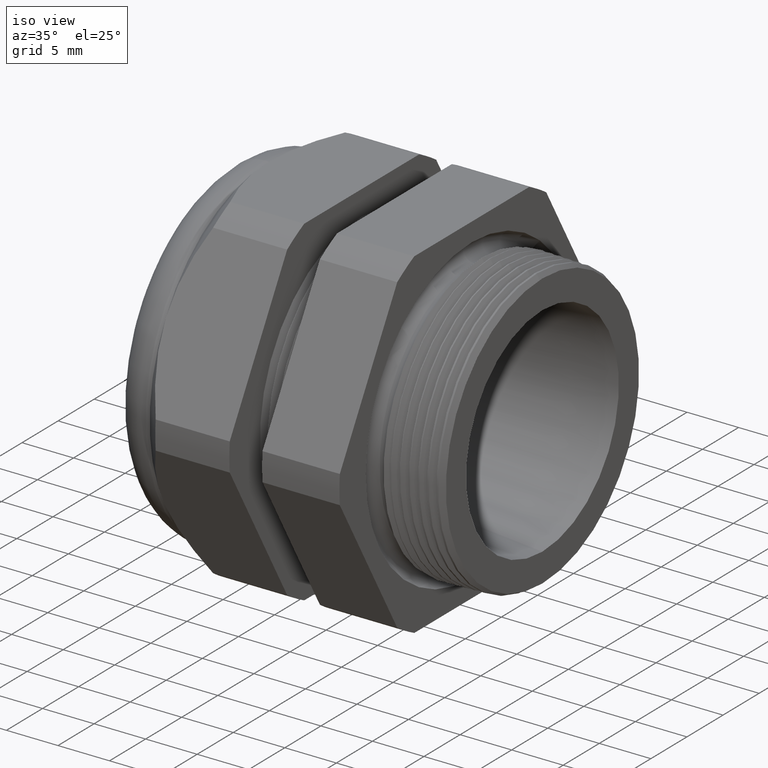
[diagram: clean part render]
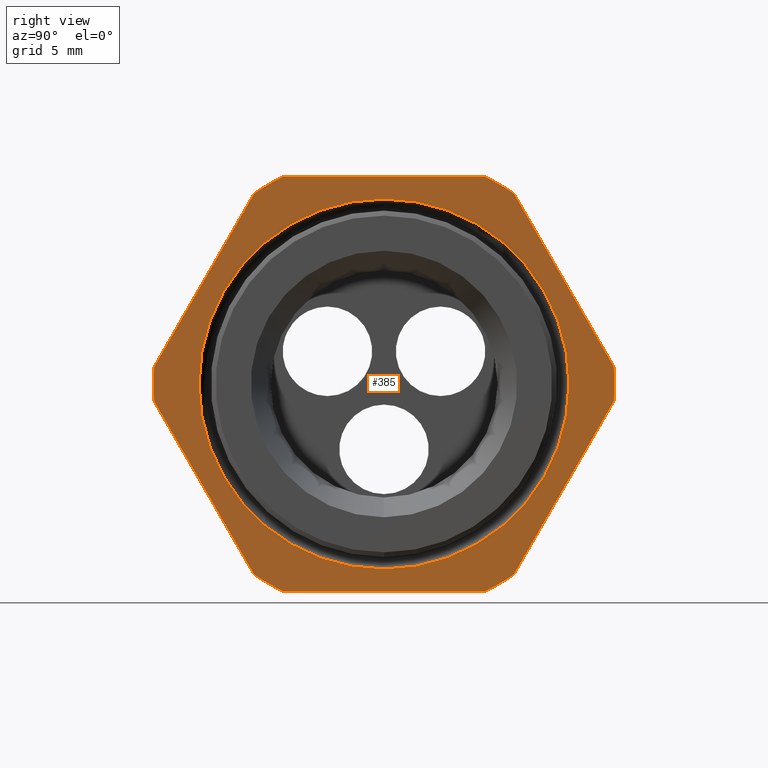
[diagram: tour spotlight — one face highlighted and labeled with its STEP entity id]
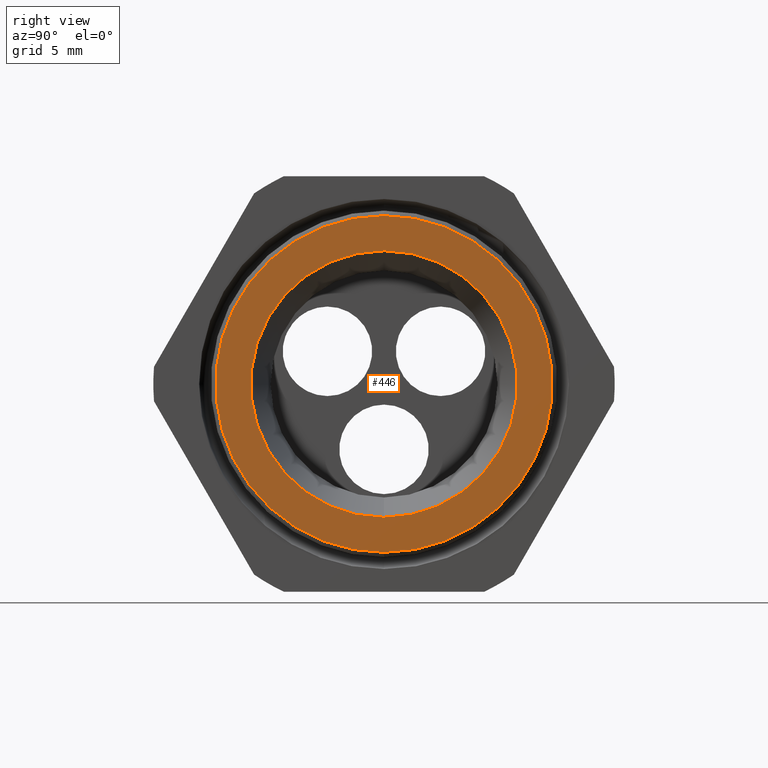
[diagram: tour spotlight — one face highlighted and labeled with its STEP entity id]
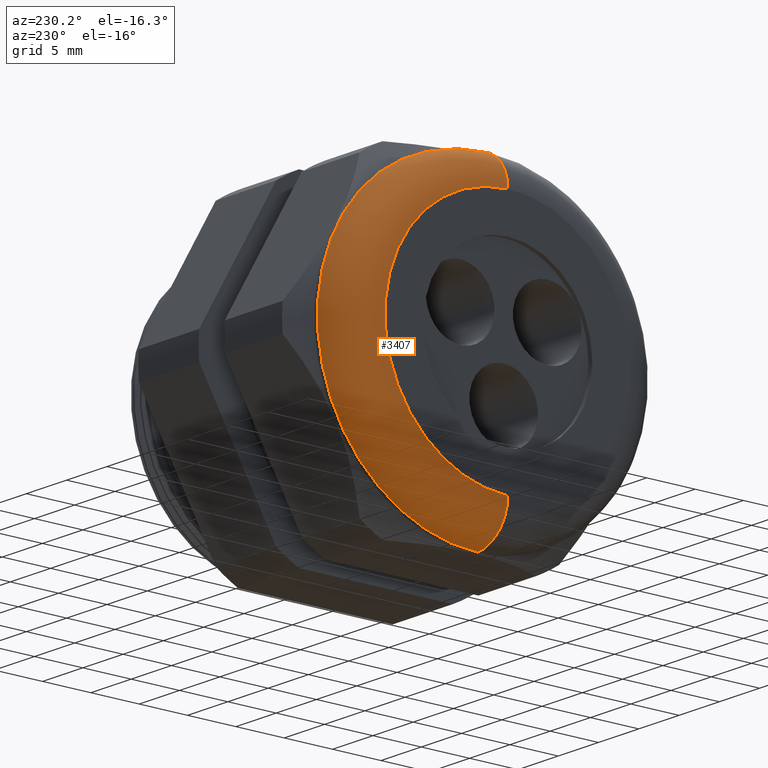
[diagram: tour spotlight — one face highlighted and labeled with its STEP entity id]
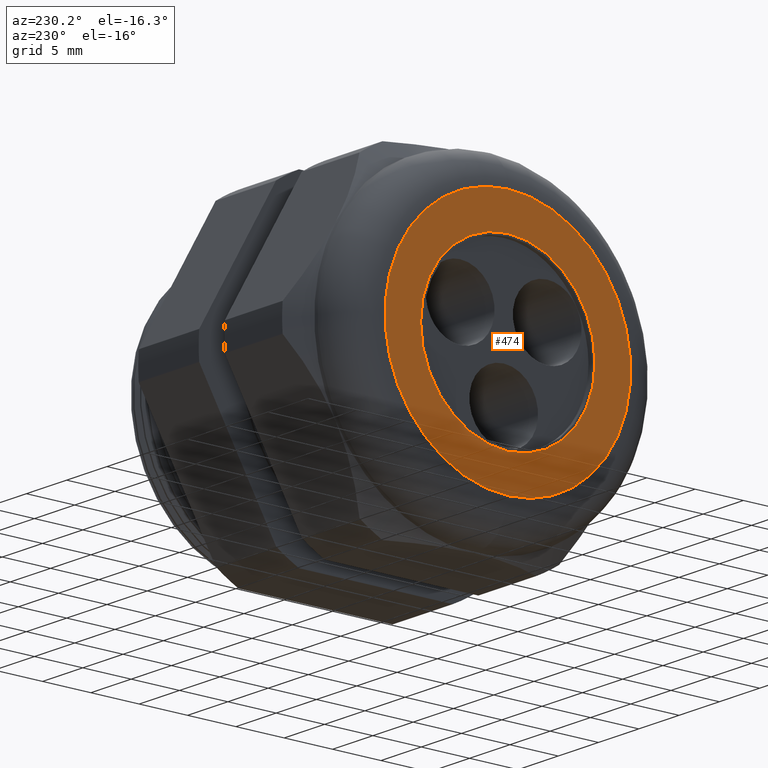
[diagram: tour spotlight — one face highlighted and labeled with its STEP entity id]
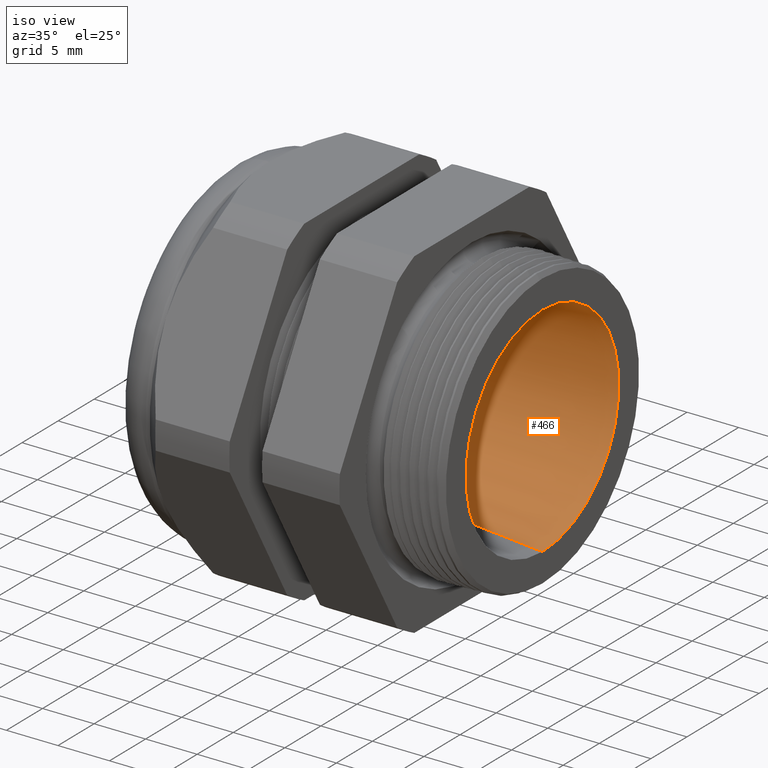
[diagram: tour spotlight — one face highlighted and labeled with its STEP entity id]
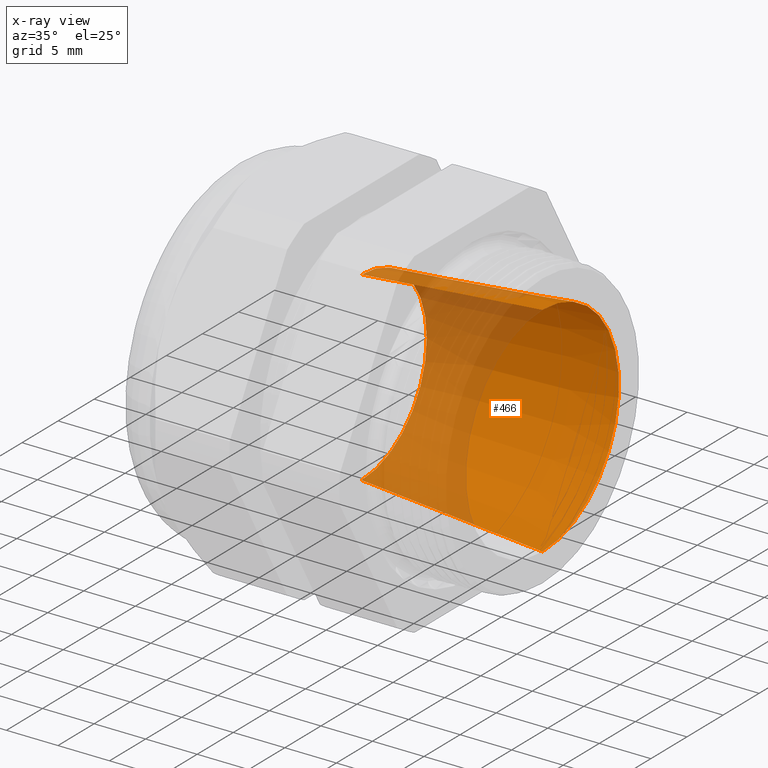
[diagram: x-ray of the same camera — body ghosted, this tour face saturated]
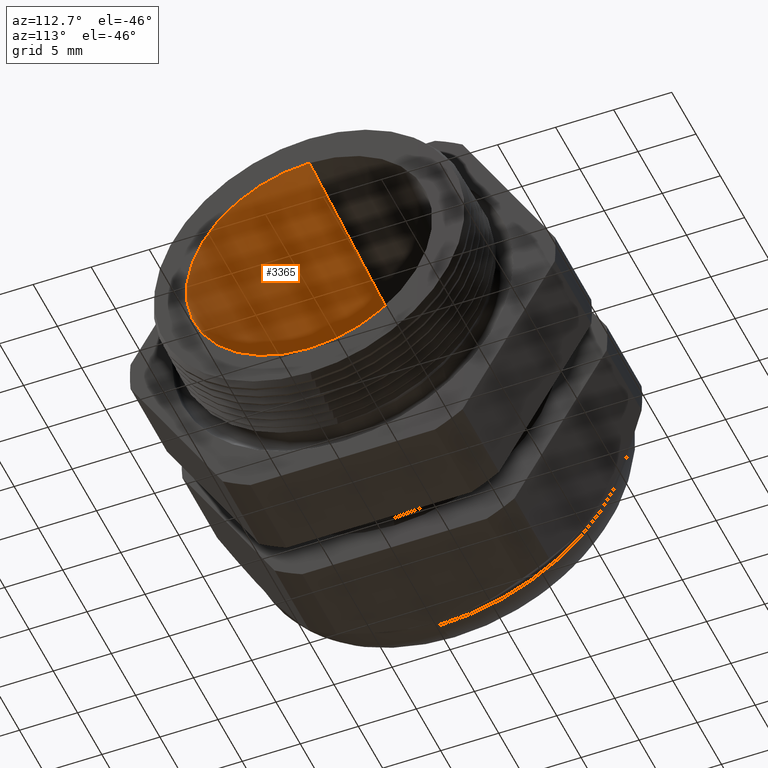
[diagram: tour spotlight — one face highlighted and labeled with its STEP entity id]
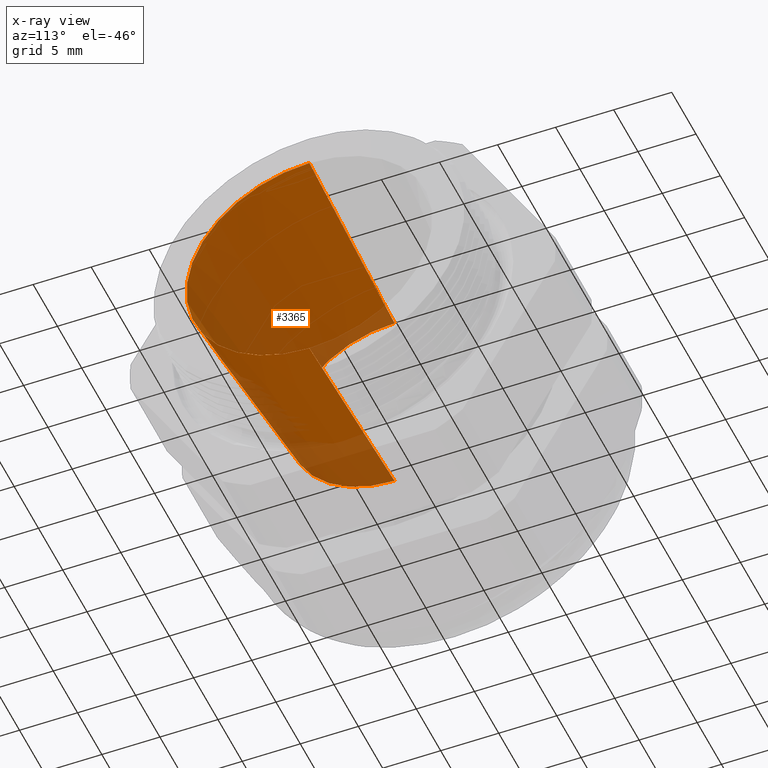
[diagram: x-ray of the same camera — body ghosted, this tour face saturated]
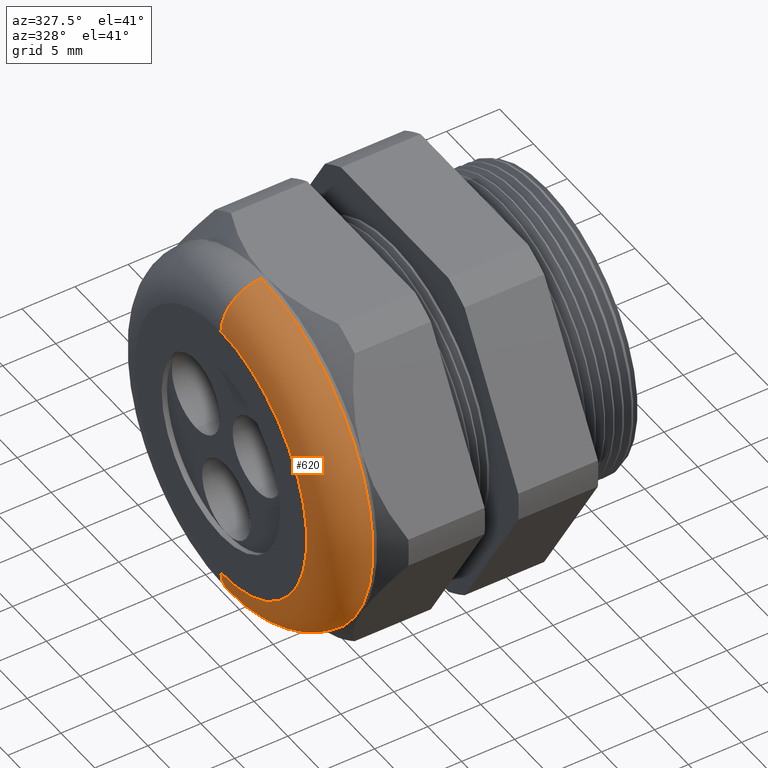
[diagram: tour spotlight — one face highlighted and labeled with its STEP entity id]
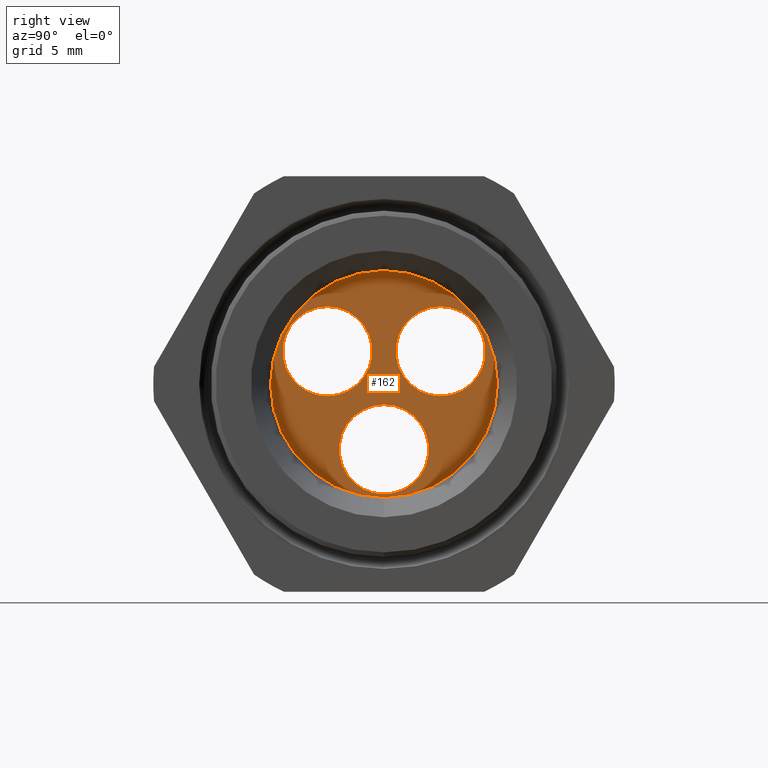
[diagram: tour spotlight — one face highlighted and labeled with its STEP entity id]
A machine part: a face-by-face anatomy tour. The part has 126 B-rep faces; the first image is the clean iso view, then the 8 largest visible faces are spotlighted one at a time (largest first), each with its STEP entity span.

Face 1 — right view, entity #385. In plain terms, the highlighted planar face has unit normal (1, 0, 0).
Definition (entity closure, byte-faithful):
#294 = VERTEX_POINT ( 'NONE', #1486 ) ;
#296 = EDGE_CURVE ( 'NONE', #294, #297, #1485, .T. ) ;
#297 = VERTEX_POINT ( 'NONE', #1480 ) ;
#359 = VERTEX_POINT ( 'NONE', #1628 ) ;
#360 = ORIENTED_EDGE ( 'NONE', *, *, #361, .F. ) ;
#361 = EDGE_CURVE ( 'NONE', #297, #294, #1627, .T. ) ;
#362 = ORIENTED_EDGE ( 'NONE', *, *, #296, .F. ) ;
#363 = EDGE_LOOP ( 'NONE', ( #364, #368, #371, #429, #432, #435, #438, #441, #415, #418, #421, #424 ) ) ;
#364 = ORIENTED_EDGE ( 'NONE', *, *, #365, .T. ) ;
#365 = EDGE_CURVE ( 'NONE', #366, #367, #1622, .T. ) ;
#366 = VERTEX_POINT ( 'NONE', #1618 ) ;
#367 = VERTEX_POINT ( 'NONE', #1617 ) ;
#368 = ORIENTED_EDGE ( 'NONE', *, *, #369, .T. ) ;
#369 = EDGE_CURVE ( 'NONE', #367, #370, #1616, .T. ) ;
#370 = VERTEX_POINT ( 'NONE', #1611 ) ;
#371 = ORIENTED_EDGE ( 'NONE', *, *, #372, .T. ) ;
#372 = EDGE_CURVE ( 'NONE', #370, #373, #1610, .T. ) ;
#373 = VERTEX_POINT ( 'NONE', #1675 ) ;
#385 = ADVANCED_FACE ( 'NONE', ( #1654, #1653 ), #1652, .T. ) ;
#386 = EDGE_LOOP ( 'NONE', ( #360, #362 ) ) ;
#415 = ORIENTED_EDGE ( 'NONE', *, *, #416, .T. ) ;
#416 = EDGE_CURVE ( 'NONE', #359, #417, #1709, .T. ) ;
#417 = VERTEX_POINT ( 'NONE', #1705 ) ;
#418 = ORIENTED_EDGE ( 'NONE', *, *, #419, .T. ) ;
#419 = EDGE_CURVE ( 'NONE', #417, #420, #1764, .T. ) ;
#420 = VERTEX_POINT ( 'NONE', #1759 ) ;
#421 = ORIENTED_EDGE ( 'NONE', *, *, #422, .T. ) ;
#422 = EDGE_CURVE ( 'NONE', #420, #423, #1758, .T. ) ;
#423 = VERTEX_POINT ( 'NONE', #1754 ) ;
#424 = ORIENTED_EDGE ( 'NONE', *, *, #425, .T. ) ;
#425 = EDGE_CURVE ( 'NONE', #423, #366, #1753, .T. ) ;
#429 = ORIENTED_EDGE ( 'NONE', *, *, #430, .T. ) ;
#430 = EDGE_CURVE ( 'NONE', #373, #431, #1741, .T. ) ;
#431 = VERTEX_POINT ( 'NONE', #1737 ) ;
#432 = ORIENTED_EDGE ( 'NONE', *, *, #433, .T. ) ;
#433 = EDGE_CURVE ( 'NONE', #431, #434, #1736, .T. ) ;
#434 = VERTEX_POINT ( 'NONE', #1793 ) ;
#435 = ORIENTED_EDGE ( 'NONE', *, *, #436, .T. ) ;
#436 = EDGE_CURVE ( 'NONE', #434, #437, #1792, .T. ) ;
#437 = VERTEX_POINT ( 'NONE', #1787 ) ;
#438 = ORIENTED_EDGE ( 'NONE', *, *, #439, .T. ) ;
#439 = EDGE_CURVE ( 'NONE', #437, #440, #1786, .T. ) ;
#440 = VERTEX_POINT ( 'NONE', #1782 ) ;
#441 = ORIENTED_EDGE ( 'NONE', *, *, #442, .T. ) ;
#442 = EDGE_CURVE ( 'NONE', #440, #359, #1781, .T. ) ;
#1480 = CARTESIAN_POINT ( 'NONE',  ( -0.3100000000000000000, 0.0000000000000000000, -0.5786346815579696000 ) ) ;
#1481 = DIRECTION ( 'NONE',  ( 0.0000000000000000000, 0.0000000000000000000, -1.000000000000000000 ) ) ;
#1482 = DIRECTION ( 'NONE',  ( 1.000000000000000000, 0.0000000000000000000, 0.0000000000000000000 ) ) ;
#1483 = CARTESIAN_POINT ( 'NONE',  ( -0.3100000000000000000, 0.0000000000000000000, 0.0000000000000000000 ) ) ;
#1484 = AXIS2_PLACEMENT_3D ( 'NONE', #1483, #1482, #1481 ) ;
#1485 = CIRCLE ( 'NONE', #1484, 0.5786346815579696000 ) ;
#1486 = CARTESIAN_POINT ( 'NONE',  ( -0.3100000000000000000, 7.086231106456154000E-017, 0.5786346815579696000 ) ) ;
#1607 = DIRECTION ( 'NONE',  ( 0.0000000000000000000, -0.5000000000000002200, 0.8660254037844384900 ) ) ;
#1608 = VECTOR ( 'NONE', #1607, 39.37007874015748900 ) ;
#1609 = CARTESIAN_POINT ( 'NONE',  ( -0.3100000000000000000, 0.8879165124598856800, -0.2379165124598850200 ) ) ;
#1610 = LINE ( 'NONE', #1609, #1608 ) ;
#1611 = CARTESIAN_POINT ( 'NONE',  ( -0.3100000000000000000, 0.7194909755756818700, 0.05380507471562175100 ) ) ;
#1612 = DIRECTION ( 'NONE',  ( 0.0000000000000000000, 0.0000000000000000000, -1.000000000000000000 ) ) ;
#1613 = DIRECTION ( 'NONE',  ( 1.000000000000000000, 0.0000000000000000000, 0.0000000000000000000 ) ) ;
#1614 = CARTESIAN_POINT ( 'NONE',  ( -0.3100000000000000000, 0.0000000000000000000, 0.0000000000000000000 ) ) ;
#1615 = AXIS2_PLACEMENT_3D ( 'NONE', #1614, #1613, #1612 ) ;
#1616 = CIRCLE ( 'NONE', #1615, 0.7214999999999999200 ) ;
#1617 = CARTESIAN_POINT ( 'NONE',  ( -0.3100000000000000000, 0.7194909755756818700, -0.05380507471562091100 ) ) ;
#1618 = CARTESIAN_POINT ( 'NONE',  ( -0.3100000000000000000, 0.4063420493440889600, -0.5961949252843789000 ) ) ;
#1619 = DIRECTION ( 'NONE',  ( 0.0000000000000000000, 0.4999999999999995600, 0.8660254037844389300 ) ) ;
#1620 = VECTOR ( 'NONE', #1619, 39.37007874015748100 ) ;
#1621 = CARTESIAN_POINT ( 'NONE',  ( -0.3100000000000000000, 0.8879165124598849000, 0.2379165124598850700 ) ) ;
#1622 = LINE ( 'NONE', #1621, #1620 ) ;
#1623 = DIRECTION ( 'NONE',  ( 0.0000000000000000000, 0.0000000000000000000, -1.000000000000000000 ) ) ;
#1624 = DIRECTION ( 'NONE',  ( 1.000000000000000000, 0.0000000000000000000, 0.0000000000000000000 ) ) ;
#1625 = CARTESIAN_POINT ( 'NONE',  ( -0.3100000000000000000, 0.0000000000000000000, 0.0000000000000000000 ) ) ;
#1626 = AXIS2_PLACEMENT_3D ( 'NONE', #1625, #1624, #1623 ) ;
#1627 = CIRCLE ( 'NONE', #1626, 0.5786346815579696000 ) ;
#1628 = CARTESIAN_POINT ( 'NONE',  ( -0.3100000000000000000, -0.7194909755756819800, -0.05380507471562111200 ) ) ;
#1648 = DIRECTION ( 'NONE',  ( 0.0000000000000000000, 0.0000000000000000000, -1.000000000000000000 ) ) ;
#1649 = DIRECTION ( 'NONE',  ( 1.000000000000000000, 0.0000000000000000000, 0.0000000000000000000 ) ) ;
#1650 = CARTESIAN_POINT ( 'NONE',  ( -0.3100000000000000000, 1.300000000000000000, 0.0000000000000000000 ) ) ;
#1651 = AXIS2_PLACEMENT_3D ( 'NONE', #1650, #1649, #1648 ) ;
#1652 = PLANE ( 'NONE',  #1651 ) ;
#1653 = FACE_OUTER_BOUND ( 'NONE', #363, .T. ) ;
#1654 = FACE_BOUND ( 'NONE', #386, .T. ) ;
#1675 = CARTESIAN_POINT ( 'NONE',  ( -0.3100000000000000000, 0.4063420493440889100, 0.5961949252843789000 ) ) ;
#1705 = CARTESIAN_POINT ( 'NONE',  ( -0.3100000000000000000, -0.4063420493440883500, -0.5961949252843792300 ) ) ;
#1706 = DIRECTION ( 'NONE',  ( 0.0000000000000000000, 0.5000000000000001100, -0.8660254037844384900 ) ) ;
#1707 = VECTOR ( 'NONE', #1706, 39.37007874015748900 ) ;
#1708 = CARTESIAN_POINT ( 'NONE',  ( -0.3100000000000000000, -0.2379165124598847100, -0.8879165124598854500 ) ) ;
#1709 = LINE ( 'NONE', #1708, #1707 ) ;
#1736 = LINE ( 'NONE', #1796, #1795 ) ;
#1737 = CARTESIAN_POINT ( 'NONE',  ( -0.3100000000000000000, 0.3131489262315937900, 0.6499999999999999100 ) ) ;
#1738 = DIRECTION ( 'NONE',  ( 0.0000000000000000000, 0.0000000000000000000, -1.000000000000000000 ) ) ;
#1739 = DIRECTION ( 'NONE',  ( 1.000000000000000000, 0.0000000000000000000, 0.0000000000000000000 ) ) ;
#1740 = AXIS2_PLACEMENT_3D ( 'NONE', #1746, #1739, #1738 ) ;
#1741 = CIRCLE ( 'NONE', #1740, 0.7215000000000000300 ) ;
#1746 = CARTESIAN_POINT ( 'NONE',  ( -0.3100000000000000000, 0.0000000000000000000, 0.0000000000000000000 ) ) ;
#1749 = DIRECTION ( 'NONE',  ( 0.0000000000000000000, 0.0000000000000000000, -1.000000000000000000 ) ) ;
#1750 = DIRECTION ( 'NONE',  ( 1.000000000000000000, 0.0000000000000000000, 0.0000000000000000000 ) ) ;
#1751 = CARTESIAN_POINT ( 'NONE',  ( -0.3100000000000000000, 0.0000000000000000000, 0.0000000000000000000 ) ) ;
#1752 = AXIS2_PLACEMENT_3D ( 'NONE', #1751, #1750, #1749 ) ;
#1753 = CIRCLE ( 'NONE', #1752, 0.7215000000000000300 ) ;
#1754 = CARTESIAN_POINT ( 'NONE',  ( -0.3100000000000000000, 0.3131489262315934100, -0.6500000000000001300 ) ) ;
#1755 = DIRECTION ( 'NONE',  ( 0.0000000000000000000, 1.000000000000000000, 0.0000000000000000000 ) ) ;
#1756 = VECTOR ( 'NONE', #1755, 39.37007874015748100 ) ;
#1757 = CARTESIAN_POINT ( 'NONE',  ( -0.3100000000000000000, 1.300000000000000000, -0.6500000000000001300 ) ) ;
#1758 = LINE ( 'NONE', #1757, #1756 ) ;
#1759 = CARTESIAN_POINT ( 'NONE',  ( -0.3100000000000000000, -0.3131489262315934100, -0.6500000000000001300 ) ) ;
#1760 = DIRECTION ( 'NONE',  ( 0.0000000000000000000, 0.0000000000000000000, -1.000000000000000000 ) ) ;
#1761 = DIRECTION ( 'NONE',  ( 1.000000000000000000, 0.0000000000000000000, 0.0000000000000000000 ) ) ;
#1762 = CARTESIAN_POINT ( 'NONE',  ( -0.3100000000000000000, 0.0000000000000000000, 0.0000000000000000000 ) ) ;
#1763 = AXIS2_PLACEMENT_3D ( 'NONE', #1762, #1761, #1760 ) ;
#1764 = CIRCLE ( 'NONE', #1763, 0.7215000000000000300 ) ;
#1777 = DIRECTION ( 'NONE',  ( 0.0000000000000000000, 0.0000000000000000000, -1.000000000000000000 ) ) ;
#1778 = DIRECTION ( 'NONE',  ( 1.000000000000000000, 0.0000000000000000000, 0.0000000000000000000 ) ) ;
#1779 = CARTESIAN_POINT ( 'NONE',  ( -0.3100000000000000000, 0.0000000000000000000, 0.0000000000000000000 ) ) ;
#1780 = AXIS2_PLACEMENT_3D ( 'NONE', #1779, #1778, #1777 ) ;
#1781 = CIRCLE ( 'NONE', #1780, 0.7215000000000000300 ) ;
#1782 = CARTESIAN_POINT ( 'NONE',  ( -0.3100000000000000000, -0.7194909755756819800, 0.05380507471562025900 ) ) ;
#1783 = DIRECTION ( 'NONE',  ( 0.0000000000000000000, -0.4999999999999998300, -0.8660254037844388200 ) ) ;
#1784 = VECTOR ( 'NONE', #1783, 39.37007874015748100 ) ;
#1785 = CARTESIAN_POINT ( 'NONE',  ( -0.3100000000000000000, -0.2379165124598855400, 0.8879165124598847900 ) ) ;
#1786 = LINE ( 'NONE', #1785, #1784 ) ;
#1787 = CARTESIAN_POINT ( 'NONE',  ( -0.3100000000000000000, -0.4063420493440885700, 0.5961949252843791200 ) ) ;
#1788 = DIRECTION ( 'NONE',  ( 0.0000000000000000000, 0.0000000000000000000, -1.000000000000000000 ) ) ;
#1789 = DIRECTION ( 'NONE',  ( 1.000000000000000000, 0.0000000000000000000, 0.0000000000000000000 ) ) ;
#1790 = CARTESIAN_POINT ( 'NONE',  ( -0.3100000000000000000, 0.0000000000000000000, 0.0000000000000000000 ) ) ;
#1791 = AXIS2_PLACEMENT_3D ( 'NONE', #1790, #1789, #1788 ) ;
#1792 = CIRCLE ( 'NONE', #1791, 0.7215000000000000300 ) ;
#1793 = CARTESIAN_POINT ( 'NONE',  ( -0.3100000000000000000, -0.3131489262315937400, 0.6500000000000000200 ) ) ;
#1794 = DIRECTION ( 'NONE',  ( 0.0000000000000000000, -1.000000000000000000, 0.0000000000000000000 ) ) ;
#1795 = VECTOR ( 'NONE', #1794, 39.37007874015748100 ) ;
#1796 = CARTESIAN_POINT ( 'NONE',  ( -0.3100000000000000000, 1.300000000000000000, 0.6499999999999999100 ) ) ;

Face 2 — right view, entity #446. In plain terms, the highlighted planar face has unit normal (1, 0, 0).
Definition (entity closure, byte-faithful):
#445 = EDGE_CURVE ( 'NONE', #3466, #3464, #1776, .T. ) ;
#446 = ADVANCED_FACE ( 'NONE', ( #1771, #1770 ), #1769, .T. ) ;
#447 = EDGE_LOOP ( 'NONE', ( #448, #450 ) ) ;
#448 = ORIENTED_EDGE ( 'NONE', *, *, #449, .T. ) ;
#449 = EDGE_CURVE ( 'NONE', #935, #934, #1830, .T. ) ;
#450 = ORIENTED_EDGE ( 'NONE', *, *, #933, .T. ) ;
#451 = EDGE_LOOP ( 'NONE', ( #452, #453 ) ) ;
#452 = ORIENTED_EDGE ( 'NONE', *, *, #445, .F. ) ;
#453 = ORIENTED_EDGE ( 'NONE', *, *, #3468, .F. ) ;
#933 = EDGE_CURVE ( 'NONE', #934, #935, #2549, .T. ) ;
#934 = VERTEX_POINT ( 'NONE', #2545 ) ;
#935 = VERTEX_POINT ( 'NONE', #2544 ) ;
#1765 = DIRECTION ( 'NONE',  ( 0.0000000000000000000, 0.0000000000000000000, -1.000000000000000000 ) ) ;
#1766 = DIRECTION ( 'NONE',  ( 1.000000000000000000, 0.0000000000000000000, 0.0000000000000000000 ) ) ;
#1767 = CARTESIAN_POINT ( 'NONE',  ( -0.03999999999999995200, 0.4169234665829134600, 0.0000000000000000000 ) ) ;
#1768 = AXIS2_PLACEMENT_3D ( 'NONE', #1767, #1766, #1765 ) ;
#1769 = PLANE ( 'NONE',  #1768 ) ;
#1770 = FACE_BOUND ( 'NONE', #451, .T. ) ;
#1771 = FACE_OUTER_BOUND ( 'NONE', #447, .T. ) ;
#1772 = DIRECTION ( 'NONE',  ( 0.0000000000000000000, 0.0000000000000000000, -1.000000000000000000 ) ) ;
#1773 = DIRECTION ( 'NONE',  ( 1.000000000000000000, 0.0000000000000000000, 0.0000000000000000000 ) ) ;
#1774 = CARTESIAN_POINT ( 'NONE',  ( -0.03999999999999995200, 0.0000000000000000000, 0.0000000000000000000 ) ) ;
#1775 = AXIS2_PLACEMENT_3D ( 'NONE', #1774, #1773, #1772 ) ;
#1776 = CIRCLE ( 'NONE', #1775, 0.4169234665829134600 ) ;
#1826 = DIRECTION ( 'NONE',  ( 0.0000000000000000000, 0.0000000000000000000, -1.000000000000000000 ) ) ;
#1827 = DIRECTION ( 'NONE',  ( 1.000000000000000000, 0.0000000000000000000, 0.0000000000000000000 ) ) ;
#1828 = CARTESIAN_POINT ( 'NONE',  ( -0.03999999999999995200, 0.0000000000000000000, 0.0000000000000000000 ) ) ;
#1829 = AXIS2_PLACEMENT_3D ( 'NONE', #1828, #1827, #1826 ) ;
#1830 = CIRCLE ( 'NONE', #1829, 0.5266510458544845200 ) ;
#2544 = CARTESIAN_POINT ( 'NONE',  ( -0.03999999999999995200, 0.0000000000000000000, 0.5266510458544845200 ) ) ;
#2545 = CARTESIAN_POINT ( 'NONE',  ( -0.03999999999999995200, 6.451351032405622900E-017, -0.5266510458544845200 ) ) ;
#2546 = DIRECTION ( 'NONE',  ( 0.0000000000000000000, 0.0000000000000000000, -1.000000000000000000 ) ) ;
#2547 = DIRECTION ( 'NONE',  ( 1.000000000000000000, 0.0000000000000000000, 0.0000000000000000000 ) ) ;
#2548 = AXIS2_PLACEMENT_3D ( 'NONE', #2555, #2547, #2546 ) ;
#2549 = CIRCLE ( 'NONE', #2548, 0.5266510458544845200 ) ;
#2555 = CARTESIAN_POINT ( 'NONE',  ( -0.03999999999999995200, 0.0000000000000000000, 0.0000000000000000000 ) ) ;
#2983 = DIRECTION ( 'NONE',  ( 0.0000000000000000000, 0.0000000000000000000, -1.000000000000000000 ) ) ;
#2984 = DIRECTION ( 'NONE',  ( 1.000000000000000000, 0.0000000000000000000, 0.0000000000000000000 ) ) ;
#2985 = CARTESIAN_POINT ( 'NONE',  ( -0.03999999999999995200, 0.0000000000000000000, 0.0000000000000000000 ) ) ;
#2986 = AXIS2_PLACEMENT_3D ( 'NONE', #2985, #2984, #2983 ) ;
#2987 = CIRCLE ( 'NONE', #2986, 0.4169234665829134600 ) ;
#2988 = CARTESIAN_POINT ( 'NONE',  ( -0.03999999999999995200, 0.0000000000000000000, -0.4169234665829134600 ) ) ;
#2990 = CARTESIAN_POINT ( 'NONE',  ( -0.03999999999999995200, 5.105839888401834300E-017, 0.4169234665829134600 ) ) ;
#3464 = VERTEX_POINT ( 'NONE', #2990 ) ;
#3466 = VERTEX_POINT ( 'NONE', #2988 ) ;
#3468 = EDGE_CURVE ( 'NONE', #3464, #3466, #2987, .T. ) ;

Face 3 — auxiliary view, entity #3407. In plain terms, the highlighted toroidal blend (fillet) surface has major radius 12.7 mm and minor (blend) radius 3.81 mm.
Definition (entity closure, byte-faithful):
#2792 = CARTESIAN_POINT ( 'NONE',  ( -1.099999999999999600, 0.0000000000000000000, -0.6500000000000000200 ) ) ;
#2793 = CARTESIAN_POINT ( 'NONE',  ( -1.249999999999999800, 0.0000000000000000000, 0.5000000000000001100 ) ) ;
#2794 = DIRECTION ( 'NONE',  ( 0.0000000000000000000, 0.0000000000000000000, -1.000000000000000000 ) ) ;
#2795 = DIRECTION ( 'NONE',  ( 0.0000000000000000000, -1.000000000000000000, 0.0000000000000000000 ) ) ;
#2796 = CARTESIAN_POINT ( 'NONE',  ( -1.099999999999999600, 0.0000000000000000000, 0.5000000000000001100 ) ) ;
#2797 = AXIS2_PLACEMENT_3D ( 'NONE', #2796, #2795, #2794 ) ;
#2798 = CIRCLE ( 'NONE', #2797, 0.1499999999999999700 ) ;
#2817 = DIRECTION ( 'NONE',  ( 1.000000000000000000, 0.0000000000000000000, 0.0000000000000000000 ) ) ;
#2818 = CARTESIAN_POINT ( 'NONE',  ( -1.099999999999999600, 0.0000000000000000000, 0.0000000000000000000 ) ) ;
#2819 = AXIS2_PLACEMENT_3D ( 'NONE', #2818, #2817, #2877 ) ;
#2820 = CIRCLE ( 'NONE', #2819, 0.6500000000000000200 ) ;
#2829 = CARTESIAN_POINT ( 'NONE',  ( -1.099999999999999600, 7.960204194457796700E-017, 0.6500000000000000200 ) ) ;
#2835 = DIRECTION ( 'NONE',  ( 0.0000000000000000000, 0.0000000000000000000, 1.000000000000000000 ) ) ;
#2836 = DIRECTION ( 'NONE',  ( -1.000000000000000000, 0.0000000000000000000, 0.0000000000000000000 ) ) ;
#2837 = CARTESIAN_POINT ( 'NONE',  ( -1.249999999999999800, 0.0000000000000000000, 0.0000000000000000000 ) ) ;
#2838 = AXIS2_PLACEMENT_3D ( 'NONE', #2837, #2836, #2835 ) ;
#2839 = CIRCLE ( 'NONE', #2838, 0.5000000000000001100 ) ;
#2841 = CARTESIAN_POINT ( 'NONE',  ( -1.249999999999999800, 7.041719095097281400E-017, -0.5000000000000001100 ) ) ;
#2842 = DIRECTION ( 'NONE',  ( 0.0000000000000000000, -1.224646799147353200E-016, 1.000000000000000000 ) ) ;
#2843 = DIRECTION ( 'NONE',  ( 0.0000000000000000000, 1.000000000000000000, 1.224646799147353200E-016 ) ) ;
#2844 = CARTESIAN_POINT ( 'NONE',  ( -1.099999999999999600, 6.123233995736767300E-017, -0.5000000000000001100 ) ) ;
#2845 = AXIS2_PLACEMENT_3D ( 'NONE', #2844, #2843, #2842 ) ;
#2846 = CIRCLE ( 'NONE', #2845, 0.1499999999999999700 ) ;
#2863 = DIRECTION ( 'NONE',  ( 0.0000000000000000000, 0.0000000000000000000, 1.000000000000000000 ) ) ;
#2864 = DIRECTION ( 'NONE',  ( -1.000000000000000000, 0.0000000000000000000, 0.0000000000000000000 ) ) ;
#2865 = AXIS2_PLACEMENT_3D ( 'NONE', #2873, #2864, #2863 ) ;
#2867 = TOROIDAL_SURFACE ( 'NONE', #2865, 0.5000000000000001100, 0.1499999999999999900 ) ;
#2868 = FACE_OUTER_BOUND ( 'NONE', #3402, .T. ) ;
#2873 = CARTESIAN_POINT ( 'NONE',  ( -1.099999999999999600, 0.0000000000000000000, 0.0000000000000000000 ) ) ;
#2877 = DIRECTION ( 'NONE',  ( 0.0000000000000000000, 0.0000000000000000000, 1.000000000000000000 ) ) ;
#3380 = EDGE_CURVE ( 'NONE', #3396, #3382, #2798, .T. ) ;
#3381 = ORIENTED_EDGE ( 'NONE', *, *, #3380, .F. ) ;
#3382 = VERTEX_POINT ( 'NONE', #2793 ) ;
#3383 = VERTEX_POINT ( 'NONE', #2792 ) ;
#3390 = ORIENTED_EDGE ( 'NONE', *, *, #3393, .F. ) ;
#3391 = EDGE_CURVE ( 'NONE', #3383, #3392, #2846, .T. ) ;
#3392 = VERTEX_POINT ( 'NONE', #2841 ) ;
#3393 = EDGE_CURVE ( 'NONE', #3382, #3392, #2839, .T. ) ;
#3395 = ORIENTED_EDGE ( 'NONE', *, *, #3391, .T. ) ;
#3396 = VERTEX_POINT ( 'NONE', #2829 ) ;
#3402 = EDGE_LOOP ( 'NONE', ( #3403, #3395, #3390, #3381 ) ) ;
#3403 = ORIENTED_EDGE ( 'NONE', *, *, #3404, .F. ) ;
#3404 = EDGE_CURVE ( 'NONE', #3383, #3396, #2820, .T. ) ;
#3407 = ADVANCED_FACE ( 'NONE', ( #2868 ), #2867, .T. ) ;

Face 4 — auxiliary view, entity #474. In plain terms, the highlighted planar face has unit normal (-1, 0, 0).
Definition (entity closure, byte-faithful):
#400 = ORIENTED_EDGE ( 'NONE', *, *, #401, .T. ) ;
#401 = EDGE_CURVE ( 'NONE', #3492, #3491, #1685, .T. ) ;
#458 = ORIENTED_EDGE ( 'NONE', *, *, #3490, .T. ) ;
#474 = ADVANCED_FACE ( 'NONE', ( #1853, #1852 ), #1851, .T. ) ;
#475 = EDGE_LOOP ( 'NONE', ( #476, #477 ) ) ;
#476 = ORIENTED_EDGE ( 'NONE', *, *, #3393, .T. ) ;
#477 = ORIENTED_EDGE ( 'NONE', *, *, #478, .T. ) ;
#478 = EDGE_CURVE ( 'NONE', #3392, #3382, #1846, .T. ) ;
#479 = EDGE_LOOP ( 'NONE', ( #400, #458 ) ) ;
#1169 = DIRECTION ( 'NONE',  ( 1.000000000000000000, 0.0000000000000000000, 0.0000000000000000000 ) ) ;
#1434 = DIRECTION ( 'NONE',  ( 0.0000000000000000000, 0.0000000000000000000, -1.000000000000000000 ) ) ;
#1683 = CARTESIAN_POINT ( 'NONE',  ( -1.249999999999999800, 0.0000000000000000000, 0.0000000000000000000 ) ) ;
#1684 = AXIS2_PLACEMENT_3D ( 'NONE', #1683, #1169, #1434 ) ;
#1685 = CIRCLE ( 'NONE', #1684, 0.3549999999999999800 ) ;
#1842 = DIRECTION ( 'NONE',  ( 0.0000000000000000000, 0.0000000000000000000, 1.000000000000000000 ) ) ;
#1843 = DIRECTION ( 'NONE',  ( -1.000000000000000000, 0.0000000000000000000, 0.0000000000000000000 ) ) ;
#1844 = CARTESIAN_POINT ( 'NONE',  ( -1.249999999999999800, 0.0000000000000000000, 0.0000000000000000000 ) ) ;
#1845 = AXIS2_PLACEMENT_3D ( 'NONE', #1844, #1843, #1842 ) ;
#1846 = CIRCLE ( 'NONE', #1845, 0.5000000000000001100 ) ;
#1847 = DIRECTION ( 'NONE',  ( 0.0000000000000000000, 0.0000000000000000000, 1.000000000000000000 ) ) ;
#1848 = DIRECTION ( 'NONE',  ( -1.000000000000000000, 0.0000000000000000000, 0.0000000000000000000 ) ) ;
#1849 = CARTESIAN_POINT ( 'NONE',  ( -1.249999999999999800, 0.6500000000000000200, 0.0000000000000000000 ) ) ;
#1850 = AXIS2_PLACEMENT_3D ( 'NONE', #1849, #1848, #1847 ) ;
#1851 = PLANE ( 'NONE',  #1850 ) ;
#1852 = FACE_BOUND ( 'NONE', #479, .T. ) ;
#1853 = FACE_OUTER_BOUND ( 'NONE', #475, .T. ) ;
#2793 = CARTESIAN_POINT ( 'NONE',  ( -1.249999999999999800, 0.0000000000000000000, 0.5000000000000001100 ) ) ;
#2835 = DIRECTION ( 'NONE',  ( 0.0000000000000000000, 0.0000000000000000000, 1.000000000000000000 ) ) ;
#2836 = DIRECTION ( 'NONE',  ( -1.000000000000000000, 0.0000000000000000000, 0.0000000000000000000 ) ) ;
#2837 = CARTESIAN_POINT ( 'NONE',  ( -1.249999999999999800, 0.0000000000000000000, 0.0000000000000000000 ) ) ;
#2838 = AXIS2_PLACEMENT_3D ( 'NONE', #2837, #2836, #2835 ) ;
#2839 = CIRCLE ( 'NONE', #2838, 0.5000000000000001100 ) ;
#2841 = CARTESIAN_POINT ( 'NONE',  ( -1.249999999999999800, 7.041719095097281400E-017, -0.5000000000000001100 ) ) ;
#3005 = CARTESIAN_POINT ( 'NONE',  ( -1.249999999999999800, 0.0000000000000000000, -0.3549999999999999800 ) ) ;
#3006 = CARTESIAN_POINT ( 'NONE',  ( -1.249999999999999800, 4.347496136973103500E-017, 0.3549999999999999800 ) ) ;
#3007 = DIRECTION ( 'NONE',  ( 0.0000000000000000000, 0.0000000000000000000, -1.000000000000000000 ) ) ;
#3008 = DIRECTION ( 'NONE',  ( 1.000000000000000000, 0.0000000000000000000, 0.0000000000000000000 ) ) ;
#3009 = CARTESIAN_POINT ( 'NONE',  ( -1.249999999999999800, 0.0000000000000000000, 0.0000000000000000000 ) ) ;
#3010 = AXIS2_PLACEMENT_3D ( 'NONE', #3009, #3008, #3007 ) ;
#3011 = CIRCLE ( 'NONE', #3010, 0.3549999999999999800 ) ;
#3382 = VERTEX_POINT ( 'NONE', #2793 ) ;
#3392 = VERTEX_POINT ( 'NONE', #2841 ) ;
#3393 = EDGE_CURVE ( 'NONE', #3382, #3392, #2839, .T. ) ;
#3490 = EDGE_CURVE ( 'NONE', #3491, #3492, #3011, .T. ) ;
#3491 = VERTEX_POINT ( 'NONE', #3006 ) ;
#3492 = VERTEX_POINT ( 'NONE', #3005 ) ;

Face 5 — iso view, entity #466. An x-ray twin of the same camera follows (body ghosted, this face saturated) — the face is partly hidden behind the body. In plain terms, the highlighted conical surface has half-angle 5.126 deg.
Definition (entity closure, byte-faithful):
#443 = ORIENTED_EDGE ( 'NONE', *, *, #3473, .T. ) ;
#444 = ORIENTED_EDGE ( 'NONE', *, *, #445, .T. ) ;
#445 = EDGE_CURVE ( 'NONE', #3466, #3464, #1776, .T. ) ;
#465 = EDGE_CURVE ( 'NONE', #3461, #3458, #1811, .T. ) ;
#466 = ADVANCED_FACE ( 'NONE', ( #1802 ), #1801, .F. ) ;
#467 = EDGE_LOOP ( 'NONE', ( #468, #469, #443, #444 ) ) ;
#468 = ORIENTED_EDGE ( 'NONE', *, *, #3463, .F. ) ;
#469 = ORIENTED_EDGE ( 'NONE', *, *, #465, .F. ) ;
#1772 = DIRECTION ( 'NONE',  ( 0.0000000000000000000, 0.0000000000000000000, -1.000000000000000000 ) ) ;
#1773 = DIRECTION ( 'NONE',  ( 1.000000000000000000, 0.0000000000000000000, 0.0000000000000000000 ) ) ;
#1774 = CARTESIAN_POINT ( 'NONE',  ( -0.03999999999999995200, 0.0000000000000000000, 0.0000000000000000000 ) ) ;
#1775 = AXIS2_PLACEMENT_3D ( 'NONE', #1774, #1773, #1772 ) ;
#1776 = CIRCLE ( 'NONE', #1775, 0.4169234665829134600 ) ;
#1797 = DIRECTION ( 'NONE',  ( 0.0000000000000000000, 0.0000000000000000000, -1.000000000000000000 ) ) ;
#1798 = DIRECTION ( 'NONE',  ( 1.000000000000000000, 0.0000000000000000000, 0.0000000000000000000 ) ) ;
#1799 = CARTESIAN_POINT ( 'NONE',  ( -0.7303149606299210700, 0.0000000000000000000, 0.0000000000000000000 ) ) ;
#1800 = AXIS2_PLACEMENT_3D ( 'NONE', #1799, #1798, #1797 ) ;
#1801 = CONICAL_SURFACE ( 'NONE', #1800, 0.3549999999999999800, 0.08946375921731318500 ) ;
#1802 = FACE_OUTER_BOUND ( 'NONE', #467, .T. ) ;
#1803 = DIRECTION ( 'NONE',  ( 0.0000000000000000000, 0.0000000000000000000, -1.000000000000000000 ) ) ;
#1804 = DIRECTION ( 'NONE',  ( 1.000000000000000000, 0.0000000000000000000, 0.0000000000000000000 ) ) ;
#1805 = CARTESIAN_POINT ( 'NONE',  ( -0.7303149606299210700, 0.0000000000000000000, 0.0000000000000000000 ) ) ;
#1806 = AXIS2_PLACEMENT_3D ( 'NONE', #1805, #1804, #1803 ) ;
#1811 = CIRCLE ( 'NONE', #1806, 0.3549999999999999800 ) ;
#2973 = DIRECTION ( 'NONE',  ( 0.9960007863580723200, 0.0000000000000000000, -0.08934446582806153400 ) ) ;
#2974 = VECTOR ( 'NONE', #2973, 39.37007874015748100 ) ;
#2975 = CARTESIAN_POINT ( 'NONE',  ( -0.7303149606299210700, 0.0000000000000000000, -0.3549999999999999800 ) ) ;
#2980 = LINE ( 'NONE', #2975, #2974 ) ;
#2988 = CARTESIAN_POINT ( 'NONE',  ( -0.03999999999999995200, 0.0000000000000000000, -0.4169234665829134600 ) ) ;
#2990 = CARTESIAN_POINT ( 'NONE',  ( -0.03999999999999995200, 5.105839888401834300E-017, 0.4169234665829134600 ) ) ;
#2991 = DIRECTION ( 'NONE',  ( 0.9960007863580723200, 1.094154140978656400E-017, 0.08934446582806153400 ) ) ;
#2992 = VECTOR ( 'NONE', #2991, 39.37007874015748100 ) ;
#2993 = CARTESIAN_POINT ( 'NONE',  ( -0.7303149606299210700, 4.347496136973103500E-017, 0.3549999999999999800 ) ) ;
#2994 = LINE ( 'NONE', #2993, #2992 ) ;
#2995 = CARTESIAN_POINT ( 'NONE',  ( -0.7303149606299210700, 0.0000000000000000000, -0.3549999999999999800 ) ) ;
#3001 = CARTESIAN_POINT ( 'NONE',  ( -0.7303149606299210700, 4.347496136973103500E-017, 0.3549999999999999800 ) ) ;
#3458 = VERTEX_POINT ( 'NONE', #3001 ) ;
#3461 = VERTEX_POINT ( 'NONE', #2995 ) ;
#3463 = EDGE_CURVE ( 'NONE', #3458, #3464, #2994, .T. ) ;
#3464 = VERTEX_POINT ( 'NONE', #2990 ) ;
#3466 = VERTEX_POINT ( 'NONE', #2988 ) ;
#3473 = EDGE_CURVE ( 'NONE', #3461, #3466, #2980, .T. ) ;

Face 6 — auxiliary view, entity #3365. An x-ray twin of the same camera follows (body ghosted, this face saturated) — the face is partly hidden behind the body. In plain terms, the highlighted conical surface has half-angle 5.126 deg.
Definition (entity closure, byte-faithful):
#2762 = DIRECTION ( 'NONE',  ( 0.0000000000000000000, 0.0000000000000000000, -1.000000000000000000 ) ) ;
#2763 = DIRECTION ( 'NONE',  ( 1.000000000000000000, 0.0000000000000000000, 0.0000000000000000000 ) ) ;
#2764 = CARTESIAN_POINT ( 'NONE',  ( -0.7303149606299210700, 0.0000000000000000000, 0.0000000000000000000 ) ) ;
#2765 = AXIS2_PLACEMENT_3D ( 'NONE', #2764, #2763, #2762 ) ;
#2766 = CONICAL_SURFACE ( 'NONE', #2765, 0.3549999999999999800, 0.08946375921731318500 ) ;
#2767 = FACE_OUTER_BOUND ( 'NONE', #3367, .T. ) ;
#2973 = DIRECTION ( 'NONE',  ( 0.9960007863580723200, 0.0000000000000000000, -0.08934446582806153400 ) ) ;
#2974 = VECTOR ( 'NONE', #2973, 39.37007874015748100 ) ;
#2975 = CARTESIAN_POINT ( 'NONE',  ( -0.7303149606299210700, 0.0000000000000000000, -0.3549999999999999800 ) ) ;
#2980 = LINE ( 'NONE', #2975, #2974 ) ;
#2983 = DIRECTION ( 'NONE',  ( 0.0000000000000000000, 0.0000000000000000000, -1.000000000000000000 ) ) ;
#2984 = DIRECTION ( 'NONE',  ( 1.000000000000000000, 0.0000000000000000000, 0.0000000000000000000 ) ) ;
#2985 = CARTESIAN_POINT ( 'NONE',  ( -0.03999999999999995200, 0.0000000000000000000, 0.0000000000000000000 ) ) ;
#2986 = AXIS2_PLACEMENT_3D ( 'NONE', #2985, #2984, #2983 ) ;
#2987 = CIRCLE ( 'NONE', #2986, 0.4169234665829134600 ) ;
#2988 = CARTESIAN_POINT ( 'NONE',  ( -0.03999999999999995200, 0.0000000000000000000, -0.4169234665829134600 ) ) ;
#2990 = CARTESIAN_POINT ( 'NONE',  ( -0.03999999999999995200, 5.105839888401834300E-017, 0.4169234665829134600 ) ) ;
#2991 = DIRECTION ( 'NONE',  ( 0.9960007863580723200, 1.094154140978656400E-017, 0.08934446582806153400 ) ) ;
#2992 = VECTOR ( 'NONE', #2991, 39.37007874015748100 ) ;
#2993 = CARTESIAN_POINT ( 'NONE',  ( -0.7303149606299210700, 4.347496136973103500E-017, 0.3549999999999999800 ) ) ;
#2994 = LINE ( 'NONE', #2993, #2992 ) ;
#2995 = CARTESIAN_POINT ( 'NONE',  ( -0.7303149606299210700, 0.0000000000000000000, -0.3549999999999999800 ) ) ;
#2996 = DIRECTION ( 'NONE',  ( 0.0000000000000000000, 0.0000000000000000000, -1.000000000000000000 ) ) ;
#2997 = DIRECTION ( 'NONE',  ( 1.000000000000000000, 0.0000000000000000000, 0.0000000000000000000 ) ) ;
#2998 = CARTESIAN_POINT ( 'NONE',  ( -0.7303149606299210700, 0.0000000000000000000, 0.0000000000000000000 ) ) ;
#2999 = AXIS2_PLACEMENT_3D ( 'NONE', #2998, #2997, #2996 ) ;
#3000 = CIRCLE ( 'NONE', #2999, 0.3549999999999999800 ) ;
#3001 = CARTESIAN_POINT ( 'NONE',  ( -0.7303149606299210700, 4.347496136973103500E-017, 0.3549999999999999800 ) ) ;
#3365 = ADVANCED_FACE ( 'NONE', ( #2767 ), #2766, .F. ) ;
#3367 = EDGE_LOOP ( 'NONE', ( #3460, #3462, #3471, #3467 ) ) ;
#3458 = VERTEX_POINT ( 'NONE', #3001 ) ;
#3459 = EDGE_CURVE ( 'NONE', #3458, #3461, #3000, .T. ) ;
#3460 = ORIENTED_EDGE ( 'NONE', *, *, #3459, .F. ) ;
#3461 = VERTEX_POINT ( 'NONE', #2995 ) ;
#3462 = ORIENTED_EDGE ( 'NONE', *, *, #3463, .T. ) ;
#3463 = EDGE_CURVE ( 'NONE', #3458, #3464, #2994, .T. ) ;
#3464 = VERTEX_POINT ( 'NONE', #2990 ) ;
#3466 = VERTEX_POINT ( 'NONE', #2988 ) ;
#3467 = ORIENTED_EDGE ( 'NONE', *, *, #3473, .F. ) ;
#3468 = EDGE_CURVE ( 'NONE', #3464, #3466, #2987, .T. ) ;
#3471 = ORIENTED_EDGE ( 'NONE', *, *, #3468, .T. ) ;
#3473 = EDGE_CURVE ( 'NONE', #3461, #3466, #2980, .T. ) ;

Face 7 — auxiliary view, entity #620. In plain terms, the highlighted toroidal blend (fillet) surface has major radius 12.7 mm and minor (blend) radius 3.81 mm.
Definition (entity closure, byte-faithful):
#411 = EDGE_CURVE ( 'NONE', #3396, #3383, #1718, .T. ) ;
#478 = EDGE_CURVE ( 'NONE', #3392, #3382, #1846, .T. ) ;
#620 = ADVANCED_FACE ( 'NONE', ( #2087 ), #2086, .T. ) ;
#621 = EDGE_LOOP ( 'NONE', ( #622, #623, #3506, #3499 ) ) ;
#622 = ORIENTED_EDGE ( 'NONE', *, *, #3391, .F. ) ;
#623 = ORIENTED_EDGE ( 'NONE', *, *, #411, .F. ) ;
#1715 = DIRECTION ( 'NONE',  ( 0.0000000000000000000, 0.0000000000000000000, 1.000000000000000000 ) ) ;
#1716 = DIRECTION ( 'NONE',  ( 1.000000000000000000, 0.0000000000000000000, 0.0000000000000000000 ) ) ;
#1717 = AXIS2_PLACEMENT_3D ( 'NONE', #1723, #1716, #1715 ) ;
#1718 = CIRCLE ( 'NONE', #1717, 0.6500000000000000200 ) ;
#1723 = CARTESIAN_POINT ( 'NONE',  ( -1.099999999999999600, 0.0000000000000000000, 0.0000000000000000000 ) ) ;
#1842 = DIRECTION ( 'NONE',  ( 0.0000000000000000000, 0.0000000000000000000, 1.000000000000000000 ) ) ;
#1843 = DIRECTION ( 'NONE',  ( -1.000000000000000000, 0.0000000000000000000, 0.0000000000000000000 ) ) ;
#1844 = CARTESIAN_POINT ( 'NONE',  ( -1.249999999999999800, 0.0000000000000000000, 0.0000000000000000000 ) ) ;
#1845 = AXIS2_PLACEMENT_3D ( 'NONE', #1844, #1843, #1842 ) ;
#1846 = CIRCLE ( 'NONE', #1845, 0.5000000000000001100 ) ;
#2081 = DIRECTION ( 'NONE',  ( 0.0000000000000000000, 0.0000000000000000000, 1.000000000000000000 ) ) ;
#2082 = DIRECTION ( 'NONE',  ( -1.000000000000000000, 0.0000000000000000000, 0.0000000000000000000 ) ) ;
#2083 = CARTESIAN_POINT ( 'NONE',  ( -1.099999999999999600, 0.0000000000000000000, 0.0000000000000000000 ) ) ;
#2084 = AXIS2_PLACEMENT_3D ( 'NONE', #2083, #2082, #2081 ) ;
#2086 = TOROIDAL_SURFACE ( 'NONE', #2084, 0.5000000000000001100, 0.1499999999999999900 ) ;
#2087 = FACE_OUTER_BOUND ( 'NONE', #621, .T. ) ;
#2792 = CARTESIAN_POINT ( 'NONE',  ( -1.099999999999999600, 0.0000000000000000000, -0.6500000000000000200 ) ) ;
#2793 = CARTESIAN_POINT ( 'NONE',  ( -1.249999999999999800, 0.0000000000000000000, 0.5000000000000001100 ) ) ;
#2794 = DIRECTION ( 'NONE',  ( 0.0000000000000000000, 0.0000000000000000000, -1.000000000000000000 ) ) ;
#2795 = DIRECTION ( 'NONE',  ( 0.0000000000000000000, -1.000000000000000000, 0.0000000000000000000 ) ) ;
#2796 = CARTESIAN_POINT ( 'NONE',  ( -1.099999999999999600, 0.0000000000000000000, 0.5000000000000001100 ) ) ;
#2797 = AXIS2_PLACEMENT_3D ( 'NONE', #2796, #2795, #2794 ) ;
#2798 = CIRCLE ( 'NONE', #2797, 0.1499999999999999700 ) ;
#2829 = CARTESIAN_POINT ( 'NONE',  ( -1.099999999999999600, 7.960204194457796700E-017, 0.6500000000000000200 ) ) ;
#2841 = CARTESIAN_POINT ( 'NONE',  ( -1.249999999999999800, 7.041719095097281400E-017, -0.5000000000000001100 ) ) ;
#2842 = DIRECTION ( 'NONE',  ( 0.0000000000000000000, -1.224646799147353200E-016, 1.000000000000000000 ) ) ;
#2843 = DIRECTION ( 'NONE',  ( 0.0000000000000000000, 1.000000000000000000, 1.224646799147353200E-016 ) ) ;
#2844 = CARTESIAN_POINT ( 'NONE',  ( -1.099999999999999600, 6.123233995736767300E-017, -0.5000000000000001100 ) ) ;
#2845 = AXIS2_PLACEMENT_3D ( 'NONE', #2844, #2843, #2842 ) ;
#2846 = CIRCLE ( 'NONE', #2845, 0.1499999999999999700 ) ;
#3380 = EDGE_CURVE ( 'NONE', #3396, #3382, #2798, .T. ) ;
#3382 = VERTEX_POINT ( 'NONE', #2793 ) ;
#3383 = VERTEX_POINT ( 'NONE', #2792 ) ;
#3391 = EDGE_CURVE ( 'NONE', #3383, #3392, #2846, .T. ) ;
#3392 = VERTEX_POINT ( 'NONE', #2841 ) ;
#3396 = VERTEX_POINT ( 'NONE', #2829 ) ;
#3499 = ORIENTED_EDGE ( 'NONE', *, *, #478, .F. ) ;
#3506 = ORIENTED_EDGE ( 'NONE', *, *, #3380, .T. ) ;

Face 8 — right view, entity #162. In plain terms, the highlighted planar face has unit normal (-1, 0, 0).
Definition (entity closure, byte-faithful):
#92 = VERTEX_POINT ( 'NONE', #1121 ) ;
#122 = EDGE_CURVE ( 'NONE', #123, #142, #1151, .T. ) ;
#123 = VERTEX_POINT ( 'NONE', #1146 ) ;
#135 = EDGE_CURVE ( 'NONE', #136, #137, #1187, .T. ) ;
#136 = VERTEX_POINT ( 'NONE', #1183 ) ;
#137 = VERTEX_POINT ( 'NONE', #1182 ) ;
#142 = VERTEX_POINT ( 'NONE', #1176 ) ;
#148 = EDGE_CURVE ( 'NONE', #92, #149, #1228, .T. ) ;
#149 = VERTEX_POINT ( 'NONE', #1224 ) ;
#162 = ADVANCED_FACE ( 'NONE', ( #1259, #1258, #1257, #1256 ), #1255, .F. ) ;
#164 = ORIENTED_EDGE ( 'NONE', *, *, #165, .T. ) ;
#165 = EDGE_CURVE ( 'NONE', #137, #136, #1245, .T. ) ;
#166 = ORIENTED_EDGE ( 'NONE', *, *, #135, .T. ) ;
#167 = EDGE_LOOP ( 'NONE', ( #236, #238 ) ) ;
#173 = VERTEX_POINT ( 'NONE', #1296 ) ;
#187 = VERTEX_POINT ( 'NONE', #1325 ) ;
#190 = EDGE_CURVE ( 'NONE', #187, #173, #1320, .T. ) ;
#213 = EDGE_CURVE ( 'NONE', #149, #92, #1336, .T. ) ;
#216 = ORIENTED_EDGE ( 'NONE', *, *, #213, .T. ) ;
#217 = ORIENTED_EDGE ( 'NONE', *, *, #235, .T. ) ;
#218 = EDGE_LOOP ( 'NONE', ( #164, #166 ) ) ;
#226 = ORIENTED_EDGE ( 'NONE', *, *, #122, .T. ) ;
#229 = EDGE_LOOP ( 'NONE', ( #217, #226 ) ) ;
#230 = EDGE_CURVE ( 'NONE', #173, #187, #1386, .T. ) ;
#231 = EDGE_LOOP ( 'NONE', ( #216, #237 ) ) ;
#235 = EDGE_CURVE ( 'NONE', #142, #123, #1382, .T. ) ;
#236 = ORIENTED_EDGE ( 'NONE', *, *, #190, .F. ) ;
#237 = ORIENTED_EDGE ( 'NONE', *, *, #148, .T. ) ;
#238 = ORIENTED_EDGE ( 'NONE', *, *, #230, .F. ) ;
#1121 = CARTESIAN_POINT ( 'NONE',  ( -0.8999999999999998000, -0.1770502335496901000, -0.03777999999999921000 ) ) ;
#1146 = CARTESIAN_POINT ( 'NONE',  ( -0.8999999999999998000, 0.1770502335496915400, -0.03778000000000168700 ) ) ;
#1147 = DIRECTION ( 'NONE',  ( 0.0000000000000000000, -0.8660254037844432600, -0.4999999999999919500 ) ) ;
#1148 = DIRECTION ( 'NONE',  ( -1.000000000000000000, 0.0000000000000000000, 0.0000000000000000000 ) ) ;
#1149 = CARTESIAN_POINT ( 'NONE',  ( -0.8999999999999998000, 0.1770502335496914900, 0.1022199999999983300 ) ) ;
#1150 = AXIS2_PLACEMENT_3D ( 'NONE', #1149, #1148, #1147 ) ;
#1151 = CIRCLE ( 'NONE', #1150, 0.1400000000000000100 ) ;
#1176 = CARTESIAN_POINT ( 'NONE',  ( -0.8999999999999998000, 0.1770502335496914900, 0.2422199999999983300 ) ) ;
#1182 = CARTESIAN_POINT ( 'NONE',  ( -0.8999999999999998000, 0.0000000000000000000, -0.06443999999999991400 ) ) ;
#1183 = CARTESIAN_POINT ( 'NONE',  ( -0.8999999999999998000, 1.714505518806294400E-017, -0.3444399999999999100 ) ) ;
#1184 = DIRECTION ( 'NONE',  ( 0.0000000000000000000, 0.0000000000000000000, 1.000000000000000000 ) ) ;
#1185 = DIRECTION ( 'NONE',  ( -1.000000000000000000, 0.0000000000000000000, 0.0000000000000000000 ) ) ;
#1186 = AXIS2_PLACEMENT_3D ( 'NONE', #1193, #1185, #1184 ) ;
#1187 = CIRCLE ( 'NONE', #1186, 0.1400000000000000100 ) ;
#1193 = CARTESIAN_POINT ( 'NONE',  ( -0.8999999999999998000, 0.0000000000000000000, -0.2044399999999999300 ) ) ;
#1224 = CARTESIAN_POINT ( 'NONE',  ( -0.8999999999999998000, -0.1770502335496901300, 0.2422200000000008200 ) ) ;
#1225 = DIRECTION ( 'NONE',  ( 0.0000000000000000000, 0.8660254037844362700, -0.5000000000000040000 ) ) ;
#1226 = DIRECTION ( 'NONE',  ( -1.000000000000000000, 0.0000000000000000000, 0.0000000000000000000 ) ) ;
#1227 = AXIS2_PLACEMENT_3D ( 'NONE', #1232, #1226, #1225 ) ;
#1228 = CIRCLE ( 'NONE', #1227, 0.1400000000000000400 ) ;
#1232 = CARTESIAN_POINT ( 'NONE',  ( -0.8999999999999998000, -0.1770502335496901300, 0.1022200000000008000 ) ) ;
#1241 = DIRECTION ( 'NONE',  ( 0.0000000000000000000, 0.0000000000000000000, 1.000000000000000000 ) ) ;
#1242 = DIRECTION ( 'NONE',  ( -1.000000000000000000, 0.0000000000000000000, 0.0000000000000000000 ) ) ;
#1243 = CARTESIAN_POINT ( 'NONE',  ( -0.8999999999999998000, 0.0000000000000000000, -0.2044399999999999300 ) ) ;
#1244 = AXIS2_PLACEMENT_3D ( 'NONE', #1243, #1242, #1241 ) ;
#1245 = CIRCLE ( 'NONE', #1244, 0.1400000000000000100 ) ;
#1251 = DIRECTION ( 'NONE',  ( 0.0000000000000000000, 0.0000000000000000000, 1.000000000000000000 ) ) ;
#1252 = DIRECTION ( 'NONE',  ( -1.000000000000000000, 0.0000000000000000000, 0.0000000000000000000 ) ) ;
#1253 = CARTESIAN_POINT ( 'NONE',  ( -0.8999999999999998000, 0.0000000000000000000, 0.0000000000000000000 ) ) ;
#1254 = AXIS2_PLACEMENT_3D ( 'NONE', #1253, #1252, #1251 ) ;
#1255 = PLANE ( 'NONE',  #1254 ) ;
#1256 = FACE_OUTER_BOUND ( 'NONE', #167, .T. ) ;
#1257 = FACE_BOUND ( 'NONE', #218, .T. ) ;
#1258 = FACE_BOUND ( 'NONE', #231, .T. ) ;
#1259 = FACE_BOUND ( 'NONE', #229, .T. ) ;
#1296 = CARTESIAN_POINT ( 'NONE',  ( -0.8999999999999998000, 4.347496136973103500E-017, -0.3549999999999999800 ) ) ;
#1316 = DIRECTION ( 'NONE',  ( 0.0000000000000000000, 0.0000000000000000000, 1.000000000000000000 ) ) ;
#1317 = DIRECTION ( 'NONE',  ( -1.000000000000000000, 0.0000000000000000000, 0.0000000000000000000 ) ) ;
#1318 = CARTESIAN_POINT ( 'NONE',  ( -0.8999999999999998000, 0.0000000000000000000, 0.0000000000000000000 ) ) ;
#1319 = AXIS2_PLACEMENT_3D ( 'NONE', #1318, #1317, #1316 ) ;
#1320 = CIRCLE ( 'NONE', #1319, 0.3549999999999999800 ) ;
#1325 = CARTESIAN_POINT ( 'NONE',  ( -0.8999999999999998000, 0.0000000000000000000, 0.3549999999999999800 ) ) ;
#1332 = DIRECTION ( 'NONE',  ( 0.0000000000000000000, 0.8660254037844362700, -0.5000000000000040000 ) ) ;
#1333 = DIRECTION ( 'NONE',  ( -1.000000000000000000, 0.0000000000000000000, 0.0000000000000000000 ) ) ;
#1334 = CARTESIAN_POINT ( 'NONE',  ( -0.8999999999999998000, -0.1770502335496901300, 0.1022200000000008000 ) ) ;
#1335 = AXIS2_PLACEMENT_3D ( 'NONE', #1334, #1333, #1332 ) ;
#1336 = CIRCLE ( 'NONE', #1335, 0.1400000000000000400 ) ;
#1378 = DIRECTION ( 'NONE',  ( 0.0000000000000000000, -0.8660254037844432600, -0.4999999999999919500 ) ) ;
#1379 = DIRECTION ( 'NONE',  ( -1.000000000000000000, 0.0000000000000000000, 0.0000000000000000000 ) ) ;
#1380 = CARTESIAN_POINT ( 'NONE',  ( -0.8999999999999998000, 0.1770502335496914900, 0.1022199999999983300 ) ) ;
#1381 = AXIS2_PLACEMENT_3D ( 'NONE', #1380, #1379, #1378 ) ;
#1382 = CIRCLE ( 'NONE', #1381, 0.1400000000000000100 ) ;
#1383 = DIRECTION ( 'NONE',  ( 0.0000000000000000000, 0.0000000000000000000, 1.000000000000000000 ) ) ;
#1384 = DIRECTION ( 'NONE',  ( -1.000000000000000000, 0.0000000000000000000, 0.0000000000000000000 ) ) ;
#1385 = AXIS2_PLACEMENT_3D ( 'NONE', #1391, #1384, #1383 ) ;
#1386 = CIRCLE ( 'NONE', #1385, 0.3549999999999999800 ) ;
#1391 = CARTESIAN_POINT ( 'NONE',  ( -0.8999999999999998000, 0.0000000000000000000, 0.0000000000000000000 ) ) ;